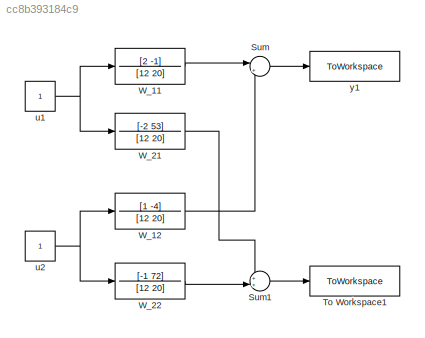
MODEL slx_cc8b393184c9
KIND model
CONFIG AbsTol = auto
CONFIG EnableMultiTasking = off
CONFIG FixedStep = auto
CONFIG MaxStep = auto
CONFIG MinStep = auto
CONFIG RelTol = 1e-3
CONFIG SampleTimeConstraint = Unconstrained
CONFIG SolverName = VariableStepAuto
CONFIG StartTime = 0.0
CONFIG StopTime = 10.0
BLOCK [Sum] Sum
  Inputs = |++
BLOCK [Sum] Sum1
  Inputs = ++|
BLOCK [ToWorkspace] To Workspace1
  FixptAsFi = on
  MaxDataPoints = inf
  SampleTime = -1
  SaveFormat = Timeseries
  VariableName = y2
BLOCK [TransferFcn] W_11
  Denominator = [12 20]
  Numerator = [2 -1]
BLOCK [TransferFcn] W_12
  Denominator = [12 20]
  Numerator = [1 -4]
BLOCK [TransferFcn] W_21
  Denominator = [12 20]
  Numerator = [-2 53]
BLOCK [TransferFcn] W_22
  Denominator = [12 20]
  Numerator = [-1 72]
BLOCK [Constant] u1
BLOCK [Constant] u2
BLOCK [ToWorkspace] y1
  FixptAsFi = on
  MaxDataPoints = inf
  SampleTime = -1
  SaveFormat = Timeseries
  VariableName = y1
LINE Sum1:1 -> To Workspace1:1
LINE Sum:1 -> y1:1
LINE W_11:1 -> Sum:1
LINE W_12:1 -> Sum:2
LINE W_21:1 -> Sum1:1
LINE W_22:1 -> Sum1:2
NET u1:1 -> W_11:1, W_21:1
NET u2:1 -> W_12:1, W_22:1
note: NET lines group one-source signal fan-out (src -> all destinations, sorted); 1:1 wires keep LINE
